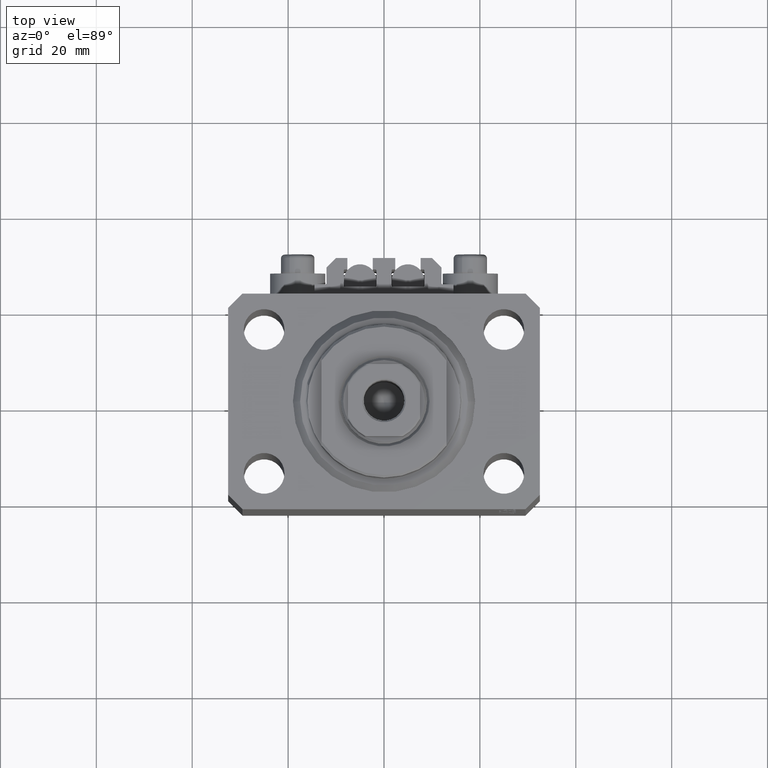
[diagram: clean part render]
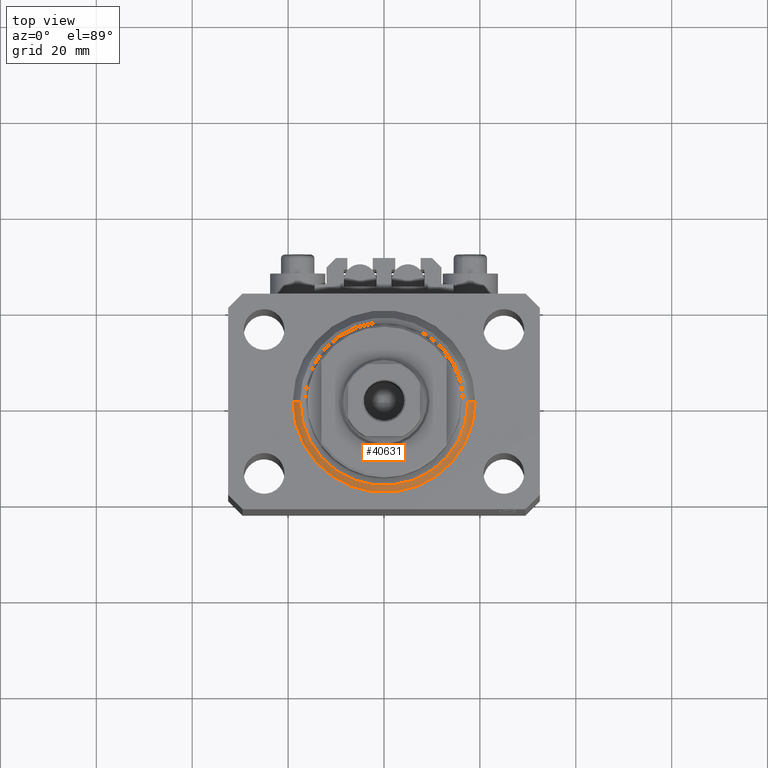
[diagram: same view with one face highlighted and labeled with its STEP entity id]
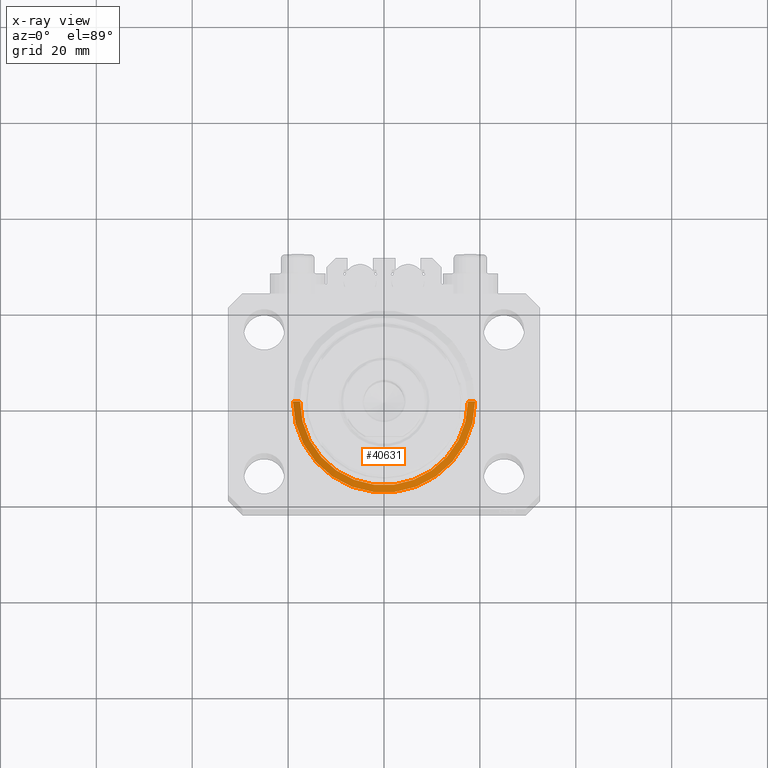
[diagram: x-ray of the same camera — body ghosted, the highlighted face saturated]
A machine part, top view. The second image highlights one B-rep face of the part: STEP entity #40631.
The next image is the same camera in x-ray: the body ghosted, the highlighted face saturated — about 0% of this face is hidden behind the body in this view.
In plain terms, the highlighted conical surface has half-angle 45 deg.
Its self-contained STEP definition (entity closure, byte-faithful):
#41 = LINE ( 'NONE', #22723, #39565 ) ;
#494 = DIRECTION ( 'NONE',  ( 0.7071067811865483499, 0.000000000000000000, 0.7071067811865467956 ) ) ;
#1037 = ORIENTED_EDGE ( 'NONE', *, *, #11868, .F. ) ;
#2771 = CARTESIAN_POINT ( 'NONE',  ( -17.49999999999999289, 2.234980408443919215E-15, 0.000000000000000000 ) ) ;
#2852 = CARTESIAN_POINT ( 'NONE',  ( 0.000000000000000000, 0.000000000000000000, 1.500000000000004885 ) ) ;
#2968 = CARTESIAN_POINT ( 'NONE',  ( 19.00000000000000000, 2.326828918379970970E-15, 1.500000000000004885 ) ) ;
#3746 = VECTOR ( 'NONE', #16511, 1000.000000000000000 ) ;
#5234 = ORIENTED_EDGE ( 'NONE', *, *, #25056, .F. ) ;
#6046 = AXIS2_PLACEMENT_3D ( 'NONE', #44768, #26210, #41095 ) ;
#7666 = VERTEX_POINT ( 'NONE', #2771 ) ;
#8176 = CARTESIAN_POINT ( 'NONE',  ( 0.000000000000000000, 0.000000000000000000, 1.500000000000004885 ) ) ;
#9577 = VERTEX_POINT ( 'NONE', #29179 ) ;
#9964 = CIRCLE ( 'NONE', #6046, 17.49999999999999289 ) ;
#11868 = EDGE_CURVE ( 'NONE', #9577, #7666, #9964, .T. ) ;
#12182 = EDGE_CURVE ( 'NONE', #9577, #48137, #41, .T. ) ;
#15007 = ORIENTED_EDGE ( 'NONE', *, *, #27512, .F. ) ;
#16205 = CIRCLE ( 'NONE', #24763, 19.00000000000000000 ) ;
#16511 = DIRECTION ( 'NONE',  ( -0.7071067811865483499, 8.659560562354943952E-17, 0.7071067811865467956 ) ) ;
#16738 = LINE ( 'NONE', #24297, #3746 ) ;
#21166 = DIRECTION ( 'NONE',  ( -0.000000000000000000, -0.000000000000000000, 1.000000000000000000 ) ) ;
#22723 = CARTESIAN_POINT ( 'NONE',  ( 19.00000000000000000, 0.000000000000000000, 1.500000000000004885 ) ) ;
#24297 = CARTESIAN_POINT ( 'NONE',  ( -19.00000000000000000, 2.326828918379970970E-15, 1.500000000000004885 ) ) ;
#24763 = AXIS2_PLACEMENT_3D ( 'NONE', #8176, #37950, #27220 ) ;
#25056 = EDGE_CURVE ( 'NONE', #7666, #29783, #16738, .T. ) ;
#26210 = DIRECTION ( 'NONE',  ( -0.000000000000000000, -0.000000000000000000, -1.000000000000000000 ) ) ;
#27220 = DIRECTION ( 'NONE',  ( 1.000000000000000000, 0.000000000000000000, 0.000000000000000000 ) ) ;
#27512 = EDGE_CURVE ( 'NONE', #29783, #48137, #16205, .T. ) ;
#28590 = CARTESIAN_POINT ( 'NONE',  ( -19.00000000000000000, 0.000000000000000000, 1.500000000000004885 ) ) ;
#29179 = CARTESIAN_POINT ( 'NONE',  ( 17.49999999999999289, 0.000000000000000000, 0.000000000000000000 ) ) ;
#29783 = VERTEX_POINT ( 'NONE', #28590 ) ;
#31888 = DIRECTION ( 'NONE',  ( 1.000000000000000000, 0.000000000000000000, 0.000000000000000000 ) ) ;
#36169 = ORIENTED_EDGE ( 'NONE', *, *, #12182, .T. ) ;
#37950 = DIRECTION ( 'NONE',  ( -0.000000000000000000, -0.000000000000000000, 1.000000000000000000 ) ) ;
#39565 = VECTOR ( 'NONE', #494, 1000.000000000000000 ) ;
#40535 = EDGE_LOOP ( 'NONE', ( #5234, #1037, #36169, #15007 ) ) ;
#40631 = ADVANCED_FACE ( 'NONE', ( #43629 ), #43554, .T. ) ;
#41095 = DIRECTION ( 'NONE',  ( 1.000000000000000000, 0.000000000000000000, 0.000000000000000000 ) ) ;
#43554 = CONICAL_SURFACE ( 'NONE', #45124, 19.00000000000000000, 0.7853981633974492782 ) ;
#43629 = FACE_OUTER_BOUND ( 'NONE', #40535, .T. ) ;
#44768 = CARTESIAN_POINT ( 'NONE',  ( 0.000000000000000000, 0.000000000000000000, 0.000000000000000000 ) ) ;
#45124 = AXIS2_PLACEMENT_3D ( 'NONE', #2852, #21166, #31888 ) ;
#48137 = VERTEX_POINT ( 'NONE', #2968 ) ;